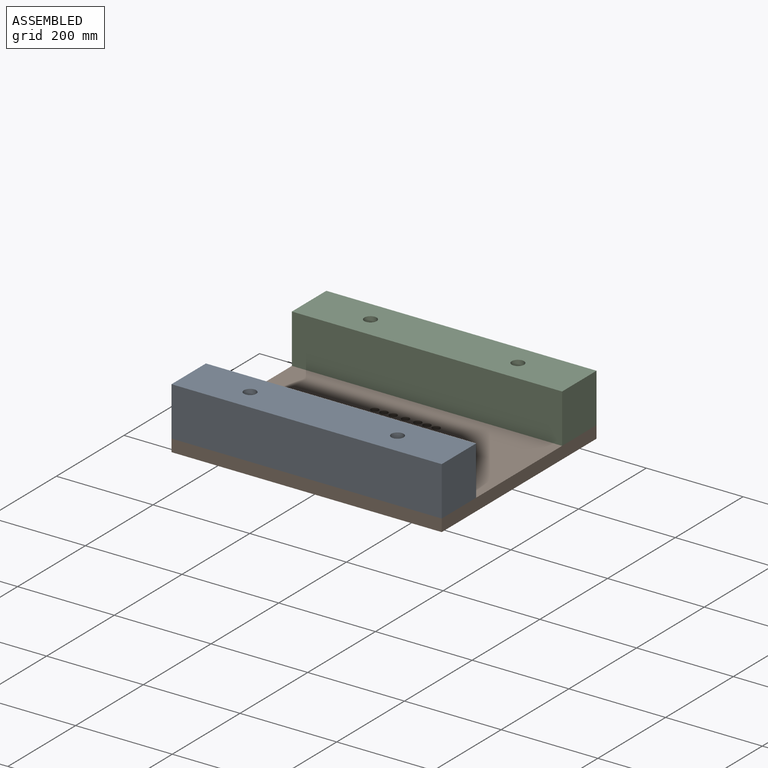
[diagram: assembled view]
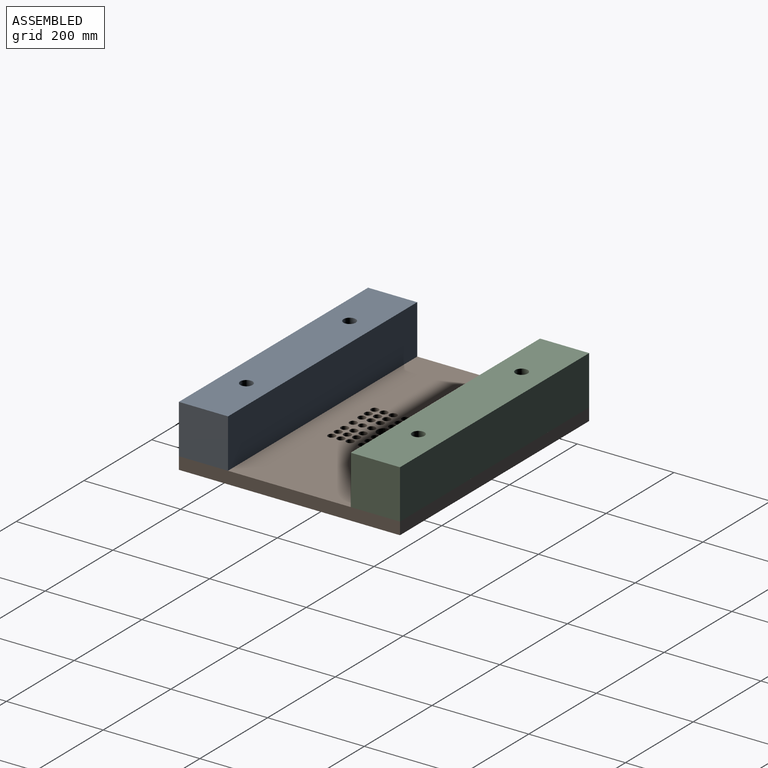
[diagram: assembled view, second angle]
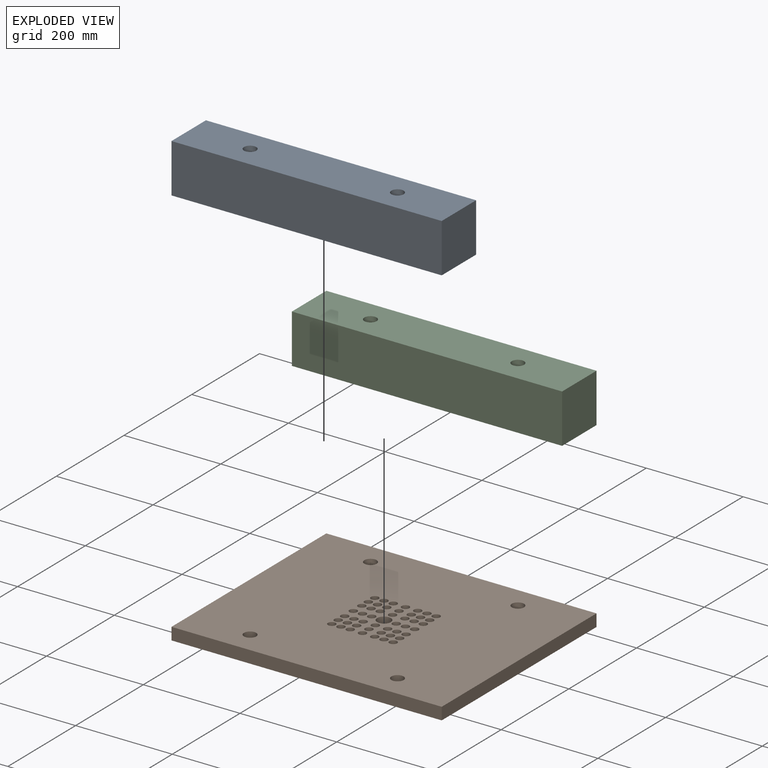
[diagram: exploded view]
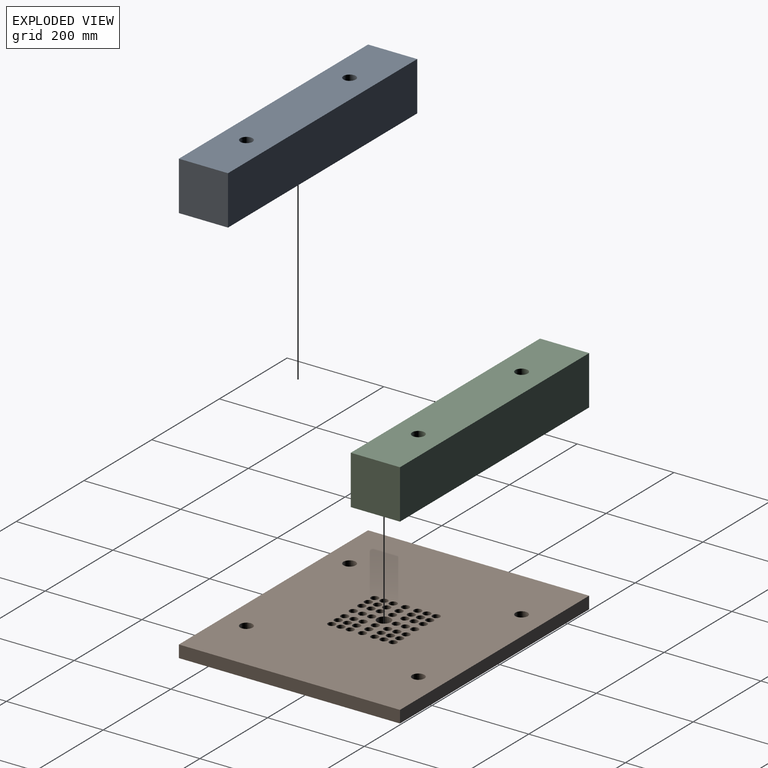
[diagram: exploded view, second angle]
ASSEMBLY  parts=3 mates=2
PART A: 8 faces, bbox 558.8x101.6x101.6 mm
  f0: plane 558.8x101.6mm, normal (0,1,0), area 56774.1mm2, adj f1,f3,f4,f5
  f1: plane 101.6x101.6mm, normal (-1,0,0), area 10322.6mm2, adj f0,f2,f4,f5
  f2: plane 558.8x101.6mm, normal (0,-1,0), area 56774.1mm2, adj f1,f3,f4,f5
  f3: plane 101.6x101.6mm, normal (1,0,0), area 10322.6mm2, adj f0,f2,f4,f5
  f4: plane 558.8x101.6mm, normal (0,0,-1), area 55760.7mm2, adj f0,f1,f2,f3,f6,f7
  f5: plane 558.8x101.6mm, normal (0,0,1), area 55760.7mm2, adj f0,f1,f2,f3,f6,f7
  f6: cylinder r=12.7mm len=101.6mm, axis (0,0,1), area 8107.3mm2, adj f4,f5
  f7: cylinder r=12.7mm len=101.6mm, axis (0,0,1), area 8107.3mm2, adj f4,f5
PART B: 155 faces, bbox 558.8x457.2x25.4 mm
  f0: cylinder r=7.94mm len=15.88mm, axis (0,0,1), area 633.4mm2, adj f24,f154
  f1: cylinder r=7.94mm len=15.88mm, axis (0,0,1), area 633.4mm2, adj f24,f152
  f2: cylinder r=7.94mm len=15.88mm, axis (0,0,1), area 633.4mm2, adj f24,f150
  f3: cylinder r=7.94mm len=15.88mm, axis (0,0,1), area 633.4mm2, adj f24,f132
  f4: cylinder r=7.94mm len=15.88mm, axis (0,0,1), area 633.4mm2, adj f24,f130
  f5: cylinder r=7.94mm len=15.88mm, axis (0,0,1), area 633.4mm2, adj f24,f128
  f6: cylinder r=7.94mm len=15.88mm, axis (0,0,1), area 633.4mm2, adj f24,f126
  f7: cylinder r=7.94mm len=15.88mm, axis (0,0,1), area 633.4mm2, adj f24,f124
  f8: cylinder r=7.94mm len=15.88mm, axis (0,0,1), area 633.4mm2, adj f24,f122
  f9: cylinder r=7.94mm len=15.88mm, axis (0,0,1), area 633.4mm2, adj f24,f112
  f10: cylinder r=7.94mm len=15.88mm, axis (0,0,1), area 633.4mm2, adj f24,f110
  f11: cylinder r=7.94mm len=15.88mm, axis (0,0,1), area 633.4mm2, adj f24,f108
  f12: cylinder r=7.94mm len=15.88mm, axis (0,0,1), area 633.4mm2, adj f24,f82
  f13: cylinder r=7.94mm len=15.88mm, axis (0,0,1), area 633.4mm2, adj f24,f80
  f14: cylinder r=7.94mm len=15.88mm, axis (0,0,1), area 633.4mm2, adj f24,f78
  f15: cylinder r=7.94mm len=15.88mm, axis (0,0,1), area 633.4mm2, adj f24,f76
  f16: cylinder r=7.94mm len=15.88mm, axis (0,0,1), area 633.4mm2, adj f24,f74
  f17: cylinder r=7.94mm len=15.88mm, axis (0,0,1), area 633.4mm2, adj f24,f72
  f18: cylinder r=7.94mm len=15.88mm, axis (0,0,1), area 633.4mm2, adj f24,f70
  f19: cylinder r=7.94mm len=15.88mm, axis (0,0,1), area 633.4mm2, adj f24,f68
  f20: cylinder r=7.94mm len=15.88mm, axis (0,0,1), area 633.4mm2, adj f24,f66
  f21: cylinder r=7.94mm len=15.88mm, axis (0,0,1), area 633.4mm2, adj f24,f64
  f22: cylinder r=7.94mm len=15.88mm, axis (0,0,1), area 633.4mm2, adj f24,f62
  f23: cylinder r=7.94mm len=15.88mm, axis (0,0,1), area 633.4mm2, adj f24,f60
  f24: plane 558.8x457.2mm, normal (0,0,1), area 243314.5mm2, adj f0,f1,f2,f3,f4,f5,f6,f7
  f25: plane 558.8x457.2mm, normal (0,0,-1), area 249395mm2, adj f26,f27,f28,f29,f30,f31,f32,f33
  f26: plane 457.2x25.4mm, normal (1,0,0), area 11612.9mm2, adj f24,f25,f27,f29
  f27: plane 558.8x25.4mm, normal (0,1,0), area 14193.5mm2, adj f24,f25,f26,f28
  f28: plane 457.2x25.4mm, normal (-1,0,0), area 11612.9mm2, adj f24,f25,f27,f29
  f29: plane 558.8x25.4mm, normal (0,-1,0), area 14193.5mm2, adj f24,f25,f26,f28
  f30: cylinder r=12.7mm len=25.4mm, axis (0,0,1), area 2026.8mm2, adj f24,f25
  f31: cylinder r=12.7mm len=25.4mm, axis (0,0,1), area 2026.8mm2, adj f24,f25
  f32: cylinder r=12.7mm len=25.4mm, axis (0,0,1), area 2026.8mm2, adj f24,f25
  f33: cylinder r=12.7mm len=25.4mm, axis (0,0,1), area 2026.8mm2, adj f24,f25
  f34: cylinder r=7.94mm len=15.88mm, axis (0,0,1), area 633.4mm2, adj f24,f100
  f35: cylinder r=7.94mm len=15.88mm, axis (0,0,1), area 633.4mm2, adj f24,f92
  f36: cylinder r=7.94mm len=15.88mm, axis (0,0,1), area 633.4mm2, adj f24,f90
  f37: cylinder r=7.94mm len=15.88mm, axis (0,0,1), area 633.4mm2, adj f24,f94
  f38: cylinder r=7.94mm len=15.88mm, axis (0,0,1), area 633.4mm2, adj f24,f84
  f39: cylinder r=7.94mm len=15.88mm, axis (0,0,1), area 633.4mm2, adj f24,f98
  f40: cylinder r=7.94mm len=15.88mm, axis (0,0,1), area 633.4mm2, adj f24,f148
  f41: cylinder r=7.94mm len=15.88mm, axis (0,0,1), area 633.4mm2, adj f24,f104
  f42: cylinder r=7.94mm len=15.88mm, axis (0,0,1), area 633.4mm2, adj f24,f134
  f43: cylinder r=7.94mm len=15.88mm, axis (0,0,1), area 633.4mm2, adj f24,f120
  f44: cylinder r=7.94mm len=15.88mm, axis (0,0,1), area 633.4mm2, adj f24,f88
  f45: cylinder r=7.94mm len=15.88mm, axis (0,0,1), area 633.4mm2, adj f24,f86
  f46: cylinder r=7.94mm len=15.88mm, axis (0,0,1), area 633.4mm2, adj f24,f116
  f47: cylinder r=7.94mm len=15.88mm, axis (0,0,1), area 633.4mm2, adj f24,f114
  f48: cylinder r=7.94mm len=15.88mm, axis (0,0,1), area 633.4mm2, adj f24,f140
  f49: cylinder r=14.29mm len=28.58mm, axis (0,0,1), area 2280.2mm2, adj f24,f25
  f50: cylinder r=7.94mm len=15.88mm, axis (0,0,1), area 633.4mm2, adj f24,f106
  f51: cylinder r=7.94mm len=15.88mm, axis (0,0,1), area 633.4mm2, adj f24,f102
  f52: cylinder r=7.94mm len=15.88mm, axis (0,0,1), area 633.4mm2, adj f24,f96
  f53: cylinder r=7.94mm len=15.88mm, axis (0,0,1), area 633.4mm2, adj f24,f142
  f54: cylinder r=7.94mm len=15.88mm, axis (0,0,1), area 633.4mm2, adj f24,f144
  f55: cylinder r=7.94mm len=15.88mm, axis (0,0,1), area 633.4mm2, adj f24,f146
  f56: cylinder r=7.94mm len=15.88mm, axis (0,0,1), area 633.4mm2, adj f24,f136
  f57: cylinder r=7.94mm len=15.88mm, axis (0,0,1), area 633.4mm2, adj f24,f118
  f58: cylinder r=7.94mm len=15.88mm, axis (0,0,1), area 633.4mm2, adj f24,f138
  f59: cylinder r=4.76mm len=12.7mm, axis (0,0,1), area 380mm2, adj f25,f60
  f60: plane 15.88x15.88mm, normal (0,0,1), area 126.7mm2, adj f23,f59
  f61: cylinder r=4.76mm len=12.7mm, axis (0,0,1), area 380mm2, adj f25,f62
  f62: plane 15.88x15.88mm, normal (0,0,1), area 126.7mm2, adj f22,f61
  f63: cylinder r=4.76mm len=12.7mm, axis (0,0,1), area 380mm2, adj f25,f64
  f64: plane 15.88x15.88mm, normal (0,0,1), area 126.7mm2, adj f21,f63
  f65: cylinder r=4.76mm len=12.7mm, axis (0,0,1), area 380mm2, adj f25,f66
  f66: plane 15.88x15.88mm, normal (0,0,1), area 126.7mm2, adj f20,f65
  f67: cylinder r=4.76mm len=12.7mm, axis (0,0,1), area 380mm2, adj f25,f68
  f68: plane 15.88x15.88mm, normal (0,0,1), area 126.7mm2, adj f19,f67
  f69: cylinder r=4.76mm len=12.7mm, axis (0,0,1), area 380mm2, adj f25,f70
  f70: plane 15.88x15.88mm, normal (0,0,1), area 126.7mm2, adj f18,f69
  f71: cylinder r=4.76mm len=12.7mm, axis (0,0,1), area 380mm2, adj f25,f72
  f72: plane 15.88x15.88mm, normal (0,0,1), area 126.7mm2, adj f17,f71
  f73: cylinder r=4.76mm len=12.7mm, axis (0,0,1), area 380mm2, adj f25,f74
  f74: plane 15.88x15.88mm, normal (0,0,1), area 126.7mm2, adj f16,f73
  f75: cylinder r=4.76mm len=12.7mm, axis (0,0,1), area 380mm2, adj f25,f76
  f76: plane 15.88x15.88mm, normal (0,0,1), area 126.7mm2, adj f15,f75
  f77: cylinder r=4.76mm len=12.7mm, axis (0,0,1), area 380mm2, adj f25,f78
  f78: plane 15.88x15.88mm, normal (0,0,1), area 126.7mm2, adj f14,f77
  f79: cylinder r=4.76mm len=12.7mm, axis (0,0,1), area 380mm2, adj f25,f80
  f80: plane 15.88x15.88mm, normal (0,0,1), area 126.7mm2, adj f13,f79
  f81: cylinder r=4.76mm len=12.7mm, axis (0,0,1), area 380mm2, adj f25,f82
  f82: plane 15.88x15.88mm, normal (0,0,1), area 126.7mm2, adj f12,f81
  f83: cylinder r=4.76mm len=12.7mm, axis (0,0,1), area 380mm2, adj f25,f84
  f84: plane 15.88x15.88mm, normal (0,0,1), area 126.7mm2, adj f38,f83
  f85: cylinder r=4.76mm len=12.7mm, axis (0,0,1), area 380mm2, adj f25,f86
  f86: plane 15.88x15.88mm, normal (0,0,1), area 126.7mm2, adj f45,f85
  f87: cylinder r=4.76mm len=12.7mm, axis (0,0,1), area 380mm2, adj f25,f88
  f88: plane 15.88x15.88mm, normal (0,0,1), area 126.7mm2, adj f44,f87
  f89: cylinder r=4.76mm len=12.7mm, axis (0,0,1), area 380mm2, adj f25,f90
  f90: plane 15.88x15.88mm, normal (0,0,1), area 126.7mm2, adj f36,f89
  f91: cylinder r=4.76mm len=12.7mm, axis (0,0,1), area 380mm2, adj f25,f92
  f92: plane 15.88x15.88mm, normal (0,0,1), area 126.7mm2, adj f35,f91
  f93: cylinder r=4.76mm len=12.7mm, axis (0,0,1), area 380mm2, adj f25,f94
  f94: plane 15.88x15.88mm, normal (0,0,1), area 126.7mm2, adj f37,f93
  f95: cylinder r=4.76mm len=12.7mm, axis (0,0,1), area 380mm2, adj f25,f96
  f96: plane 15.88x15.88mm, normal (0,0,1), area 126.7mm2, adj f52,f95
  f97: cylinder r=4.76mm len=12.7mm, axis (0,0,1), area 380mm2, adj f25,f98
  f98: plane 15.88x15.88mm, normal (0,0,1), area 126.7mm2, adj f39,f97
  f99: cylinder r=4.76mm len=12.7mm, axis (0,0,1), area 380mm2, adj f25,f100
  f100: plane 15.88x15.88mm, normal (0,0,1), area 126.7mm2, adj f34,f99
  f101: cylinder r=4.76mm len=12.7mm, axis (0,0,1), area 380mm2, adj f25,f102
  f102: plane 15.88x15.88mm, normal (0,0,1), area 126.7mm2, adj f51,f101
  f103: cylinder r=4.76mm len=12.7mm, axis (0,0,1), area 380mm2, adj f25,f104
  f104: plane 15.88x15.88mm, normal (0,0,1), area 126.7mm2, adj f41,f103
  f105: cylinder r=4.76mm len=12.7mm, axis (0,0,1), area 380mm2, adj f25,f106
  f106: plane 15.88x15.88mm, normal (0,0,1), area 126.7mm2, adj f50,f105
  f107: cylinder r=4.76mm len=12.7mm, axis (0,0,1), area 380mm2, adj f25,f108
  f108: plane 15.88x15.88mm, normal (0,0,1), area 126.7mm2, adj f11,f107
  f109: cylinder r=4.76mm len=12.7mm, axis (0,0,1), area 380mm2, adj f25,f110
  f110: plane 15.88x15.88mm, normal (0,0,1), area 126.7mm2, adj f10,f109
  f111: cylinder r=4.76mm len=12.7mm, axis (0,0,1), area 380mm2, adj f25,f112
  f112: plane 15.88x15.88mm, normal (0,0,1), area 126.7mm2, adj f9,f111
  f113: cylinder r=4.76mm len=12.7mm, axis (0,0,1), area 380mm2, adj f25,f114
  f114: plane 15.88x15.88mm, normal (0,0,1), area 126.7mm2, adj f47,f113
  f115: cylinder r=4.76mm len=12.7mm, axis (0,0,1), area 380mm2, adj f25,f116
  f116: plane 15.88x15.88mm, normal (0,0,1), area 126.7mm2, adj f46,f115
  f117: cylinder r=4.76mm len=12.7mm, axis (0,0,1), area 380mm2, adj f25,f118
  f118: plane 15.88x15.88mm, normal (0,0,1), area 126.7mm2, adj f57,f117
  f119: cylinder r=4.76mm len=12.7mm, axis (0,0,1), area 380mm2, adj f25,f120
  f120: plane 15.88x15.88mm, normal (0,0,1), area 126.7mm2, adj f43,f119
  f121: cylinder r=4.76mm len=12.7mm, axis (0,0,1), area 380mm2, adj f25,f122
  f122: plane 15.88x15.88mm, normal (0,0,1), area 126.7mm2, adj f8,f121
  f123: cylinder r=4.76mm len=12.7mm, axis (0,0,1), area 380mm2, adj f25,f124
  f124: plane 15.88x15.88mm, normal (0,0,1), area 126.7mm2, adj f7,f123
  f125: cylinder r=4.76mm len=12.7mm, axis (0,0,1), area 380mm2, adj f25,f126
  f126: plane 15.88x15.88mm, normal (0,0,1), area 126.7mm2, adj f6,f125
  f127: cylinder r=4.76mm len=12.7mm, axis (0,0,1), area 380mm2, adj f25,f128
  f128: plane 15.88x15.88mm, normal (0,0,1), area 126.7mm2, adj f5,f127
  f129: cylinder r=4.76mm len=12.7mm, axis (0,0,1), area 380mm2, adj f25,f130
  f130: plane 15.88x15.88mm, normal (0,0,1), area 126.7mm2, adj f4,f129
  f131: cylinder r=4.76mm len=12.7mm, axis (0,0,1), area 380mm2, adj f25,f132
  f132: plane 15.88x15.88mm, normal (0,0,1), area 126.7mm2, adj f3,f131
  f133: cylinder r=4.76mm len=12.7mm, axis (0,0,1), area 380mm2, adj f25,f134
  f134: plane 15.88x15.88mm, normal (0,0,1), area 126.7mm2, adj f42,f133
  f135: cylinder r=4.76mm len=12.7mm, axis (0,0,1), area 380mm2, adj f25,f136
  f136: plane 15.88x15.88mm, normal (0,0,1), area 126.7mm2, adj f56,f135
  f137: cylinder r=4.76mm len=12.7mm, axis (0,0,1), area 380mm2, adj f25,f138
  f138: plane 15.88x15.88mm, normal (0,0,1), area 126.7mm2, adj f58,f137
  f139: cylinder r=4.76mm len=12.7mm, axis (0,0,1), area 380mm2, adj f25,f140
  f140: plane 15.88x15.88mm, normal (0,0,1), area 126.7mm2, adj f48,f139
  f141: cylinder r=4.76mm len=12.7mm, axis (0,0,1), area 380mm2, adj f25,f142
  f142: plane 15.88x15.88mm, normal (0,0,1), area 126.7mm2, adj f53,f141
  f143: cylinder r=4.76mm len=12.7mm, axis (0,0,1), area 380mm2, adj f25,f144
  f144: plane 15.88x15.88mm, normal (0,0,1), area 126.7mm2, adj f54,f143
  f145: cylinder r=4.76mm len=12.7mm, axis (0,0,1), area 380mm2, adj f25,f146
  f146: plane 15.88x15.88mm, normal (0,0,1), area 126.7mm2, adj f55,f145
  f147: cylinder r=4.76mm len=12.7mm, axis (0,0,1), area 380mm2, adj f25,f148
  f148: plane 15.88x15.88mm, normal (0,0,1), area 126.7mm2, adj f40,f147
  f149: cylinder r=4.76mm len=12.7mm, axis (0,0,1), area 380mm2, adj f25,f150
  f150: plane 15.88x15.88mm, normal (0,0,1), area 126.7mm2, adj f2,f149
  f151: cylinder r=4.76mm len=12.7mm, axis (0,0,1), area 380mm2, adj f25,f152
  f152: plane 15.88x15.88mm, normal (0,0,1), area 126.7mm2, adj f1,f151
  f153: cylinder r=4.76mm len=12.7mm, axis (0,0,1), area 380mm2, adj f25,f154
  f154: plane 15.88x15.88mm, normal (0,0,1), area 126.7mm2, adj f0,f153
PART C: same geometry as A
PLACE A t=(-249.05,-246.61,10.21)mm
PLACE B t=(30.35,-18.01,-91.39)mm
PLACE C t=(-249.05,108.99,10.21)mm
MATE planar A.f4 <-> B.f24  axis (0,0,-1) through (30.35,-145.01,-91.39)mm
MATE planar C.f4 <-> B.f22  axis (0,0,-1) through (30.35,159.79,-91.39)mm
